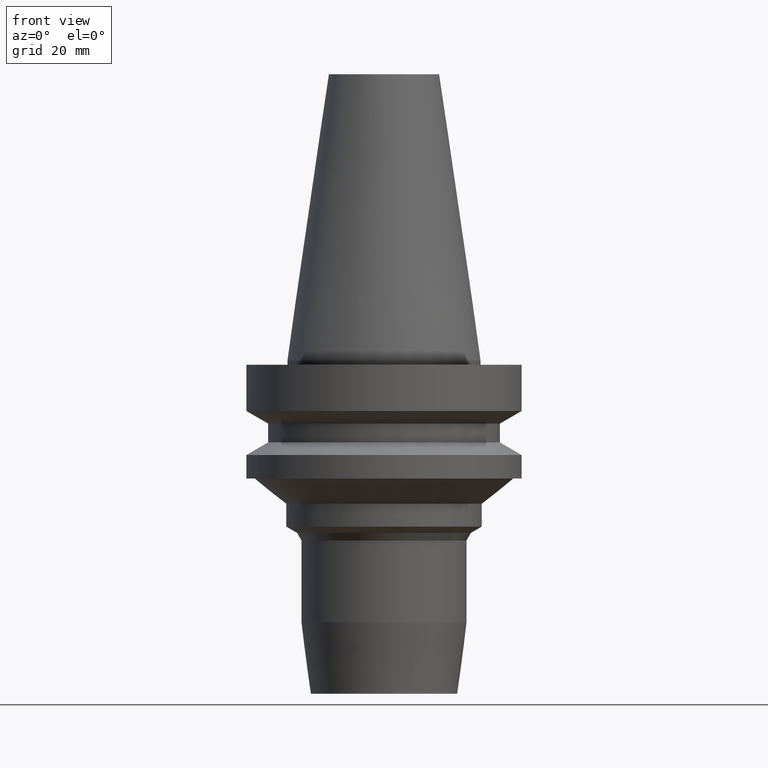
[diagram: clean part render]
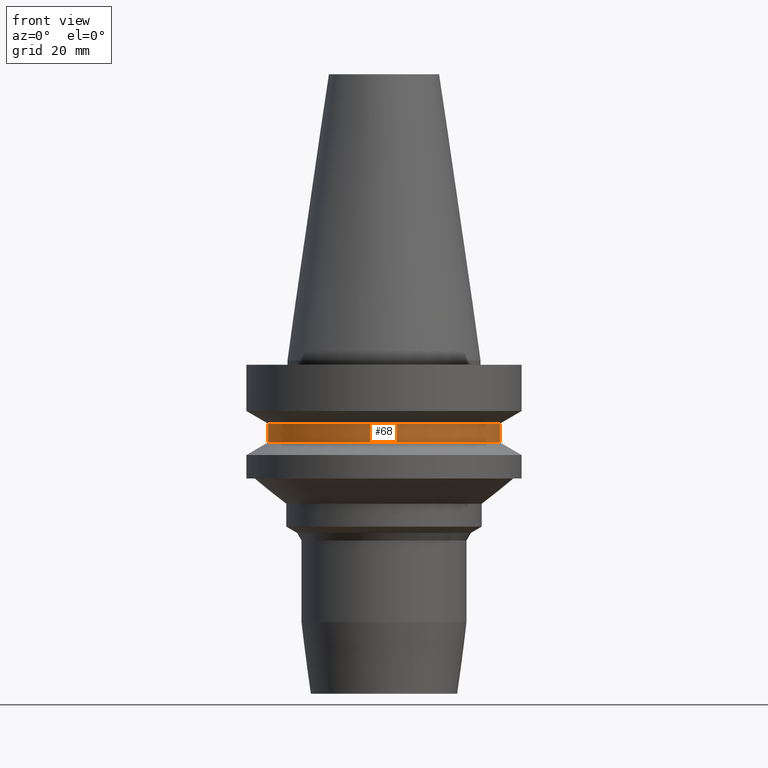
[diagram: same view with one face highlighted and labeled with its STEP entity id]
A machine part, front view. The second image highlights one B-rep face of the part: STEP entity #68.
In plain terms, the highlighted cylindrical surface (bore or boss wall) has radius 26.5 mm, axis along (0, -0, -1).
Its self-contained STEP definition (entity closure, byte-faithful):
#68=ADVANCED_FACE('Unnamed[1]',(#176,#177),#178,.T.);
#117=EDGE_CURVE('Unnamed[1]',#253,#253,#254,.T.);
#119=EDGE_CURVE('Unnamed[1]',#256,#256,#257,.T.);
#176=FACE_BOUND('',#320,.T.);
#177=FACE_BOUND('',#321,.T.);
#178=CYLINDRICAL_SURFACE('',#322,26.4999999999997);
#253=VERTEX_POINT('',#417);
#254=CIRCLE('',#418,26.4999999999994);
#256=VERTEX_POINT('',#421);
#257=CIRCLE('',#422,26.5);
#320=EDGE_LOOP('',(#486));
#321=EDGE_LOOP('',(#487));
#322=AXIS2_PLACEMENT_3D('',#488,#489,#490);
#417=CARTESIAN_POINT('',(8.8494551369045E-016,26.4999999999995,-14.4522569986152));
#418=AXIS2_PLACEMENT_3D('',#573,#574,#575);
#421=CARTESIAN_POINT('',(1.1479681728942E-015,26.5,-18.7477430013855));
#422=AXIS2_PLACEMENT_3D('',#576,#577,#578);
#486=ORIENTED_EDGE('',*,*,#119,.F.);
#487=ORIENTED_EDGE('',*,*,#117,.T.);
#488=CARTESIAN_POINT('',(1.01645684329232E-015,2.1523290255622E-014,-16.6000000000003));
#489=DIRECTION('',(6.12323399573677E-017,-6.70422349373967E-016,-1.0));
#490=DIRECTION('',(3.62243764811148E-032,1.0,-6.70422349373967E-016));
#573=CARTESIAN_POINT('',(8.84945513690449E-016,2.29631851644621E-014,-14.4522569986152));
#574=DIRECTION('',(6.12323399573677E-017,-6.70422349373967E-016,-1.0));
#575=DIRECTION('',(3.62243764811148E-032,1.0,-6.70422349373967E-016));
#576=CARTESIAN_POINT('',(1.1479681728942E-015,2.00833953467818E-014,-18.7477430013855));
#577=DIRECTION('',(6.12323399573677E-017,-6.70422349373967E-016,-1.0));
#578=DIRECTION('',(3.62243764811148E-032,1.0,-6.70422349373967E-016));